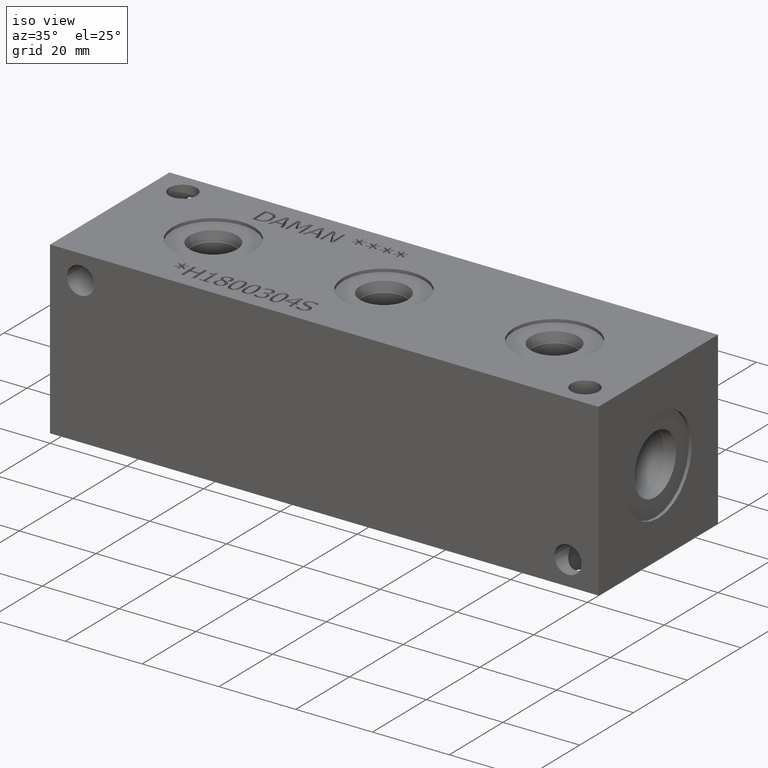
[diagram: clean part render]
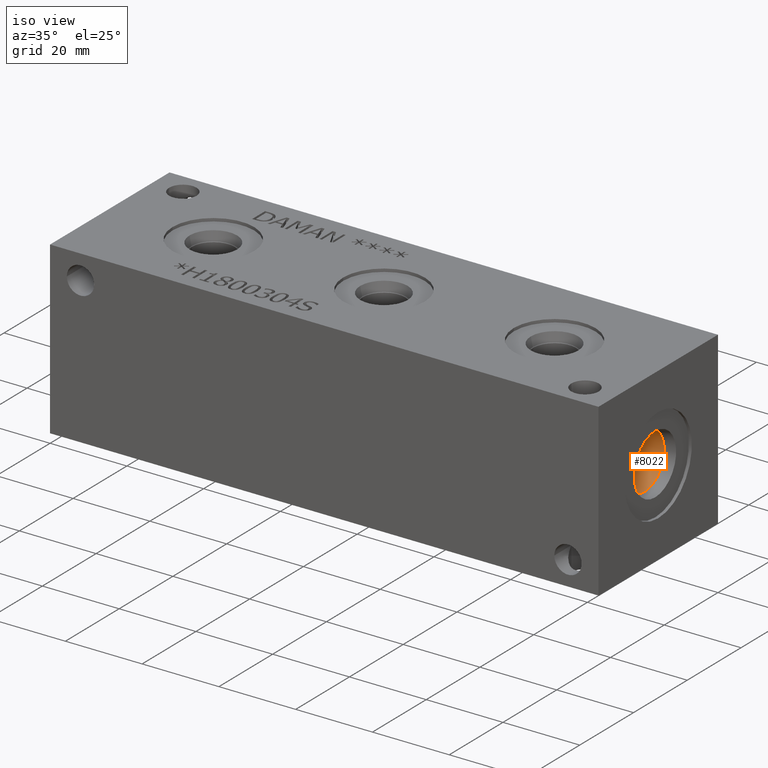
[diagram: same view with one face highlighted and labeled with its STEP entity id]
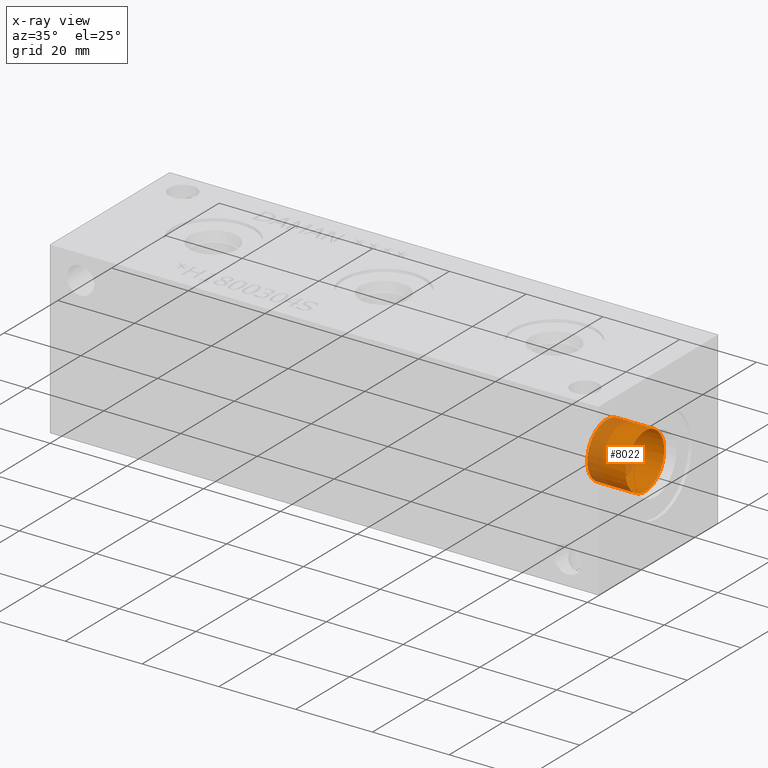
[diagram: x-ray of the same camera — body ghosted, the highlighted face saturated]
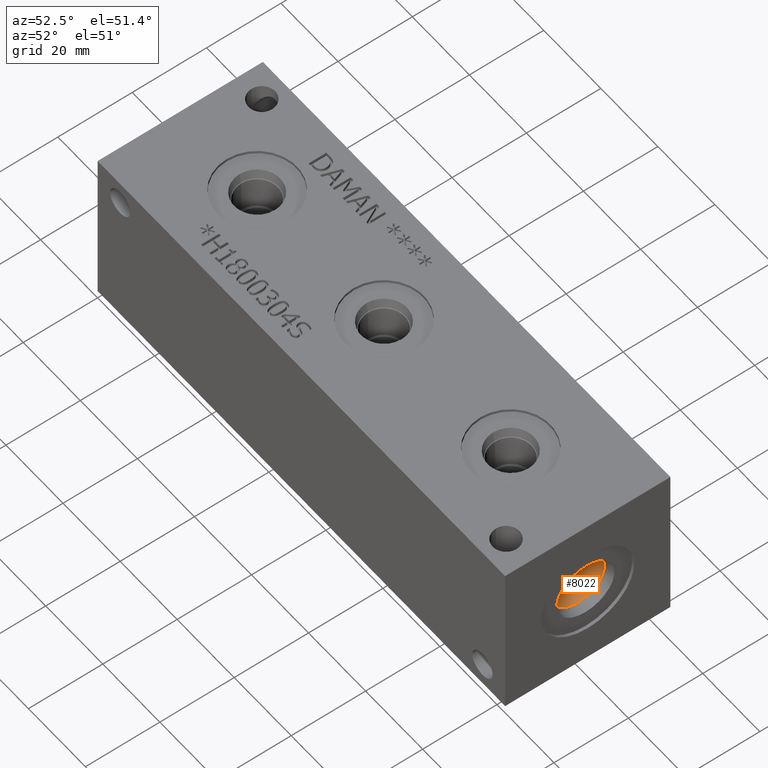
[diagram: same view with one face highlighted and labeled with its STEP entity id]
A machine part, iso view. The second image highlights one B-rep face of the part: STEP entity #8022.
The next image is the same camera in x-ray: the body ghosted, the highlighted face saturated — about 28% of this face is hidden behind the body in this view.
A second angle (auxiliary view) of the same face is appended — the face is thin or edge-on in the first view.
In plain terms, the highlighted cylindrical surface (bore or boss wall) has radius 7.1374 mm, axis along (1, 0, 0).
Its self-contained STEP definition (entity closure, byte-faithful):
#67=CYLINDRICAL_SURFACE('',#8420,7.1374);
#162=CIRCLE('',#8417,7.1374);
#163=CIRCLE('',#8418,7.1374);
#165=CIRCLE('',#8421,7.1374);
#166=CIRCLE('',#8422,7.1374);
#959=FACE_OUTER_BOUND('',#1413,.T.);
#1413=EDGE_LOOP('',(#6790,#6791,#6792,#6793,#6794,#6795));
#2198=LINE('',#13560,#2956);
#2956=VECTOR('',#9928,7.1374);
#3665=VERTEX_POINT('',#13550);
#3666=VERTEX_POINT('',#13551);
#3668=VERTEX_POINT('',#13557);
#3669=VERTEX_POINT('',#13558);
#4732=EDGE_CURVE('',#3665,#3666,#162,.T.);
#4733=EDGE_CURVE('',#3666,#3665,#163,.T.);
#4735=EDGE_CURVE('',#3668,#3669,#165,.T.);
#4736=EDGE_CURVE('',#3668,#3666,#2198,.T.);
#4737=EDGE_CURVE('',#3669,#3668,#166,.T.);
#6790=ORIENTED_EDGE('',*,*,#4735,.F.);
#6791=ORIENTED_EDGE('',*,*,#4736,.T.);
#6792=ORIENTED_EDGE('',*,*,#4732,.F.);
#6793=ORIENTED_EDGE('',*,*,#4733,.F.);
#6794=ORIENTED_EDGE('',*,*,#4736,.F.);
#6795=ORIENTED_EDGE('',*,*,#4737,.F.);
#8022=ADVANCED_FACE('',(#959),#67,.F.);
#8417=AXIS2_PLACEMENT_3D('',#13552,#9918,#9919);
#8418=AXIS2_PLACEMENT_3D('',#13553,#9920,#9921);
#8420=AXIS2_PLACEMENT_3D('',#13556,#9924,#9925);
#8421=AXIS2_PLACEMENT_3D('',#13559,#9926,#9927);
#8422=AXIS2_PLACEMENT_3D('',#13561,#9929,#9930);
#9918=DIRECTION('center_axis',(1.,0.,0.));
#9919=DIRECTION('ref_axis',(0.,1.,0.));
#9920=DIRECTION('center_axis',(1.,0.,0.));
#9921=DIRECTION('ref_axis',(0.,1.,0.));
#9924=DIRECTION('center_axis',(1.,0.,0.));
#9925=DIRECTION('ref_axis',(0.,1.,0.));
#9926=DIRECTION('center_axis',(-1.,0.,0.));
#9927=DIRECTION('ref_axis',(0.,1.,0.));
#9928=DIRECTION('',(-1.,0.,0.));
#9929=DIRECTION('center_axis',(-1.,0.,0.));
#9930=DIRECTION('ref_axis',(0.,1.,0.));
#13550=CARTESIAN_POINT('',(129.3876,29.3624,22.225));
#13551=CARTESIAN_POINT('',(129.3876,15.0876,22.225));
#13552=CARTESIAN_POINT('Origin',(129.3876,22.225,22.225));
#13553=CARTESIAN_POINT('Origin',(129.3876,22.225,22.225));
#13556=CARTESIAN_POINT('Origin',(136.1313,22.225,22.225));
#13557=CARTESIAN_POINT('',(139.446,15.0876,22.225));
#13558=CARTESIAN_POINT('',(139.446,22.225,29.3624));
#13559=CARTESIAN_POINT('Origin',(139.446,22.225,22.225));
#13560=CARTESIAN_POINT('',(136.1313,15.0876,22.225));
#13561=CARTESIAN_POINT('Origin',(139.446,22.225,22.225));